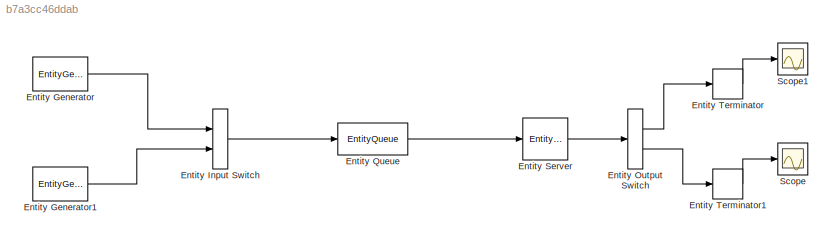
MODEL slx_b7a3cc46ddab
KIND model
CONFIG AbsTol = auto
CONFIG FixedStep = auto
CONFIG MaxStep = auto
CONFIG MinStep = auto
CONFIG RelTol = 1e-3
CONFIG SampleTimeConstraint = Unconstrained
CONFIG Solver = VariableStepAuto
CONFIG SolverMode = Auto
CONFIG SolverName = VariableStepAuto
CONFIG StartTime = 0.0
CONFIG StopTime = 100
BLOCK [EntityGenerator] Entity Generator
  AttributeInitialValue = 1|1
  AttributeName = ServiceTime|prt
  EntityType = Structured
  EntityTypeName = Entity
  GenerateAction = persistent st\nif(isempty(st))\n    rng(465);\n    st = true;\nend\nentity.ServiceTime = exprnd(0.3);
  IntergenerationTimeAction = persistent init\nif (isempty(init))\n    rng(113);\n    init = true;\nend\ndt = exprnd(0.5);
  OutputPortMap = o3
  OutputPortMessageModes = m
  Ports = [0, 1]
  TimeSource = MATLAB action
BLOCK [EntityGenerator] Entity Generator1
  AttributeInitialValue = 1|2
  AttributeName = ServiceTime|prt
  EntityType = Structured
  EntityTypeName = Entity
  IntergenerationTimeAction = persistent init\nif (isempty(init))\n    rng(113);\n    init = true;\nend\ndt = exprnd(0.5);
  OutputPortMap = o3
  OutputPortMessageModes = m
  Ports = [0, 1]
  TimeSource = MATLAB action
BLOCK [EntityInputSwitch] Entity Input Switch
  InputPortMap = u1,u2
  InputPortMessageModes = m,m
  OutputPortMap = o0
  OutputPortMessageModes = m
  Ports = [2, 1]
BLOCK [EntityOutputSwitch] Entity Output Switch
  InputPortMap = u1
  InputPortMessageModes = m
  OutputPortMap = o0,o1
  OutputPortMessageModes = m,m
  Ports = [1, 2]
  SwitchAttributeName = prt
  SwitchingCriterion = From attribute
BLOCK [EntityQueue] Entity Queue
  InputPortMap = u0
  InputPortMessageModes = m
  OutputPortMap = o5
  OutputPortMessageModes = m
  Ports = [1, 1]
BLOCK [EntityServer] Entity Server
  Capacity = 1
  InputPortMap = u2
  InputPortMessageModes = m
  OutputPortMap = o9
  OutputPortMessageModes = m
  Ports = [1, 1]
  ServiceTimeSource = Attribute
BLOCK [EntityTerminator] Entity Terminator
  InputPortMap = u0
  InputPortMessageModes = m
  NumberEntitiesArrived = on
  OutputPortMap = o0
  Ports = [1, 1]
BLOCK [EntityTerminator] Entity Terminator1
  InputPortMap = u0
  InputPortMessageModes = m
  NumberEntitiesArrived = on
  OutputPortMap = o0
  Ports = [1, 1]
BLOCK [Scope] Scope
  Ports = [1]
  ScopeSpecificationString = Simulink.scopes.TimeScopeBlockCfg('CurrentConfiguration', extmgr.ConfigurationSet(extmgr.Configuration('Core','General UI',true),extmgr.Configuration('Core','Source UI',true),extmgr.Configuration('Sources','WiredSimulink',true),extmgr.Configuration('Visuals','Time Domain',true,'SerializedDisplays',{struct('MinYLimReal','-7.125','MaxYLimReal','74.125','YLabelReal','','MinYLimMag','0.00000','MaxYLim...<+1443ch>
BLOCK [Scope] Scope1
  Ports = [1]
  ScopeSpecificationString = Simulink.scopes.TimeScopeBlockCfg('CurrentConfiguration', extmgr.ConfigurationSet(extmgr.Configuration('Core','General UI',true),extmgr.Configuration('Core','Source UI',true),extmgr.Configuration('Sources','WiredSimulink',true,'DataLoggingVariableName','ScopeData1'),extmgr.Configuration('Visuals','Time Domain',true,'SerializedDisplays',{struct('MinYLimReal','-12.375','MaxYLimReal','121.375','YLabe...<+1487ch>
LINE Entity Generator1:1 -> Entity Input Switch:2
LINE Entity Generator:1 -> Entity Input Switch:1
LINE Entity Input Switch:1 -> Entity Queue:1
LINE Entity Output Switch:1 -> Entity Terminator:1
LINE Entity Output Switch:2 -> Entity Terminator1:1
LINE Entity Queue:1 -> Entity Server:1
LINE Entity Server:1 -> Entity Output Switch:1
LINE Entity Terminator1:1 -> Scope:1
LINE Entity Terminator:1 -> Scope1:1
